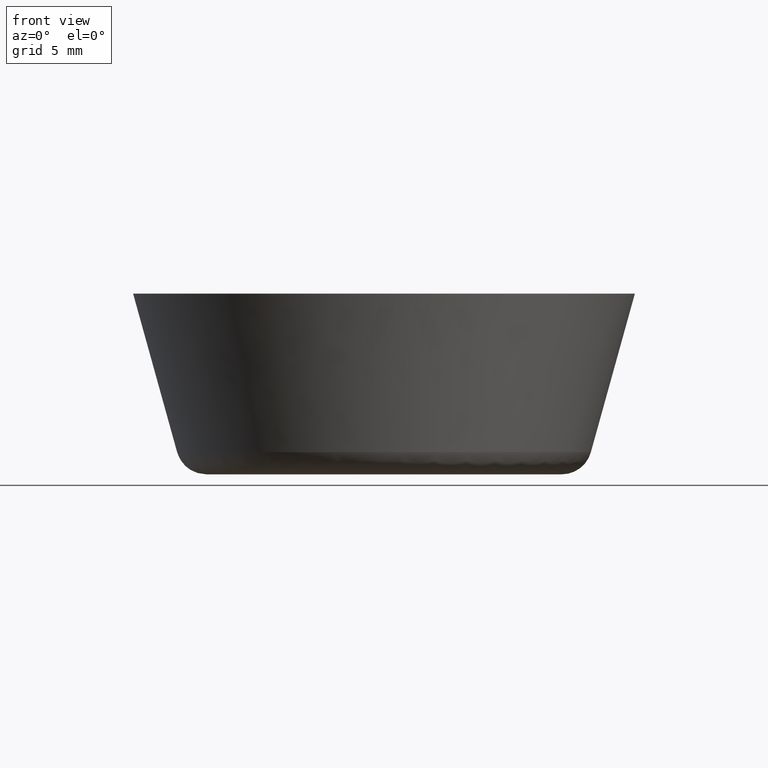
[diagram: clean part render]
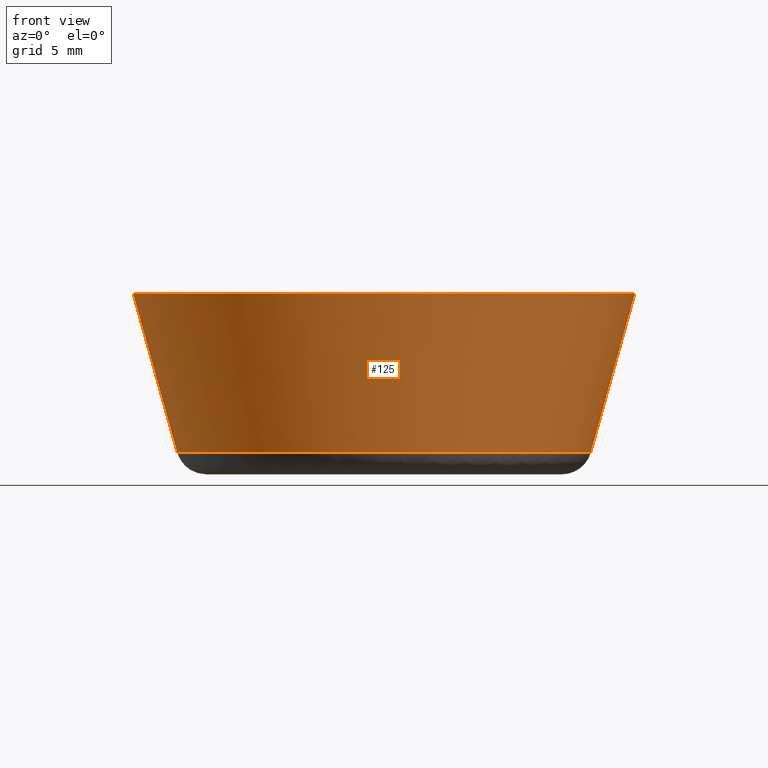
[diagram: same view with one face highlighted and labeled with its STEP entity id]
A machine part, front view. The second image highlights one B-rep face of the part: STEP entity #125.
In plain terms, the highlighted face is a freeform B-spline surface patch.
Its self-contained STEP definition (entity closure, byte-faithful):
#125=ADVANCED_FACE('',(#269),#268,.T.);
#268=( BOUNDED_SURFACE() B_SPLINE_SURFACE( 2,1,((#457,#458),(#459,#460),(#461,#462),(#463,#464),(#465,#466)), .UNSPECIFIED.,.F.,.F.,.F.) B_SPLINE_SURFACE_WITH_KNOTS((3,2,3),(2,2),(0.00000000000E+000,5.00000000000E-001,1.00000000000E+000),(0.00000000000E+000,1.00000000000E+000), .UNSPECIFIED. ) GEOMETRIC_REPRESENTATION_ITEM() RATIONAL_B_SPLINE_SURFACE(((1.00000000000E+000,1.00000000000E+000),(7.07106781187E-001,7.07106781187E-001),(1.00000000000E+000,1.00000000000E+000),(7.07106781187E-001,7.07106781187E-001),(1.00000000000E+000,1.00000000000E+000))) REPRESENTATION_ITEM('') SURFACE() );
#269=FACE_OUTER_BOUND('',#467,.T.);
#457=CARTESIAN_POINT('',(-1.03051483901E+001,-4.69604097609E-015,1.09853420432E+000));
#458=CARTESIAN_POINT('',(-1.25001947486E+001,-6.08583779543E-015,9.00070109492E+000));
#459=CARTESIAN_POINT('',(-1.03051483901E+001,-1.03051483901E+001,1.09853420432E+000));
#460=CARTESIAN_POINT('',(-1.25001947486E+001,-1.25001947486E+001,9.00070109492E+000));
#461=CARTESIAN_POINT('',(4.87205388618E-015,-1.03051483901E+001,1.09853420432E+000));
#462=CARTESIAN_POINT('',(5.90982488533E-015,-1.25001947486E+001,9.00070109492E+000));
#463=CARTESIAN_POINT('',(1.03051483901E+001,-1.03051483901E+001,1.09853420432E+000));
#464=CARTESIAN_POINT('',(1.25001947486E+001,-1.25001947486E+001,9.00070109492E+000));
#465=CARTESIAN_POINT('',(1.03051483901E+001,5.04806679627E-015,1.09853420432E+000));
#466=CARTESIAN_POINT('',(1.25001947486E+001,5.73381197524E-015,9.00070109492E+000));
#467=EDGE_LOOP('',(#552,#553,#554,#555,#556,#557));
#552=ORIENTED_EDGE('',*,*,#615,.T.);
#553=ORIENTED_EDGE('',*,*,#616,.T.);
#554=ORIENTED_EDGE('',*,*,#604,.T.);
#555=ORIENTED_EDGE('',*,*,#603,.T.);
#556=ORIENTED_EDGE('',*,*,#602,.T.);
#557=ORIENTED_EDGE('',*,*,#617,.F.);
#602=EDGE_CURVE('',#760,#761,#762,.T.);
#603=EDGE_CURVE('',#768,#760,#769,.T.);
#604=EDGE_CURVE('',#775,#768,#776,.T.);
#615=EDGE_CURVE('',#831,#830,#850,.T.);
#616=EDGE_CURVE('',#830,#775,#856,.T.);
#617=EDGE_CURVE('',#831,#761,#862,.T.);
#760=VERTEX_POINT('',#992);
#761=VERTEX_POINT('',#993);
#762=CIRCLE('',#997,1.24999989913E+001);
#768=VERTEX_POINT('',#998);
#769=CIRCLE('',#1002,1.24999982662E+001);
#775=VERTEX_POINT('',#1003);
#776=CIRCLE('',#1007,1.24999992022E+001);
#830=VERTEX_POINT('',#1042);
#831=VERTEX_POINT('',#1043);
#850=CIRCLE('',#1058,1.03051483901E+001);
#856=(BOUNDED_CURVE() B_SPLINE_CURVE(1,(#1059,#1060),.UNSPECIFIED.,.F.,.F.) B_SPLINE_CURVE_WITH_KNOTS((2,2),(0.00000000000E+000,9.99911274760E-001),.UNSPECIFIED.) CURVE() GEOMETRIC_REPRESENTATION_ITEM() RATIONAL_B_SPLINE_CURVE((1.00000000000E+000,1.00000000000E+000)) REPRESENTATION_ITEM('') );
#862=(BOUNDED_CURVE() B_SPLINE_CURVE(1,(#1061,#1062),.UNSPECIFIED.,.F.,.F.) B_SPLINE_CURVE_WITH_KNOTS((2,2),(0.00000000000E+000,1.00000000000E+000),.UNSPECIFIED.) CURVE() GEOMETRIC_REPRESENTATION_ITEM() RATIONAL_B_SPLINE_CURVE((7.50000000000E-001,7.50000000000E-001)) REPRESENTATION_ITEM('') );
#992=CARTESIAN_POINT('',(-1.16233059386E+001,-4.59877526885E+000,8.99999548469E+000));
#993=CARTESIAN_POINT('',(-1.25000000000E+001,0.00000000000E+000,9.00000000000E+000));
#994=CARTESIAN_POINT('',(-1.00870504305E-006,2.53506617076E-006,8.99999774235E+000));
#995=DIRECTION('',(-1.80612250321E-007,9.47418420445E-007,-1.00000000000E+000));
#996=DIRECTION('',(9.29864469426E-001,3.67902254001E-001,1.80612458047E-007));
#997=AXIS2_PLACEMENT_3D('',#994,#995,#996);
#998=CARTESIAN_POINT('',(9.80731530870E-001,-1.24614672356E+001,9.00000000000E+000));
#999=CARTESIAN_POINT('',(-4.47547191307E-007,-8.54079353019E-007,8.99999567810E+000));
#1000=DIRECTION('',(2.20922015426E-008,-1.37816301688E-008,-1.00000000000E+000));
#1001=DIRECTION('',(-7.84585633974E-002,9.96917375628E-001,-1.54724689751E-008));
#1002=AXIS2_PLACEMENT_3D('',#999,#1000,#1001);
#1003=CARTESIAN_POINT('',(1.25000000000E+001,0.00000000000E+000,9.00000000000E+000));
#1004=CARTESIAN_POINT('',(7.97758629822E-007,1.82841154661E-007,8.99999793575E+000));
#1005=DIRECTION('',(1.65139783597E-007,1.78647107886E-007,-1.00000000000E+000));
#1006=DIRECTION('',(-1.00000000000E+000,1.46272933064E-008,-1.65139780984E-007));
#1007=AXIS2_PLACEMENT_3D('',#1004,#1005,#1006);
#1042=CARTESIAN_POINT('',(1.03051483901E+001,-1.85409396603E-015,1.09853420432E+000));
#1043=CARTESIAN_POINT('',(-1.03051483901E+001,-5.92118946467E-016,1.09853420432E+000));
#1055=CARTESIAN_POINT('',(5.44669587257E-015,0.00000000000E+000,1.09853420432E+000));
#1056=DIRECTION('',(0.00000000000E+000,0.00000000000E+000,1.00000000000E+000));
#1057=DIRECTION('',(1.00000000000E+000,-5.74585560588E-017,-0.00000000000E+000));
#1058=AXIS2_PLACEMENT_3D('',#1055,#1056,#1057);
#1059=CARTESIAN_POINT('',(1.03051483901E+001,7.57210019440E-015,1.09853420432E+000));
#1060=CARTESIAN_POINT('',(1.24999999926E+001,8.79536812839E-015,8.99999997326E+000));
#1061=CARTESIAN_POINT('',(-1.03051483901E+001,-7.10542735760E-015,1.09853420432E+000));
#1062=CARTESIAN_POINT('',(-1.25001947486E+001,-7.69754630407E-015,9.00070109492E+000));